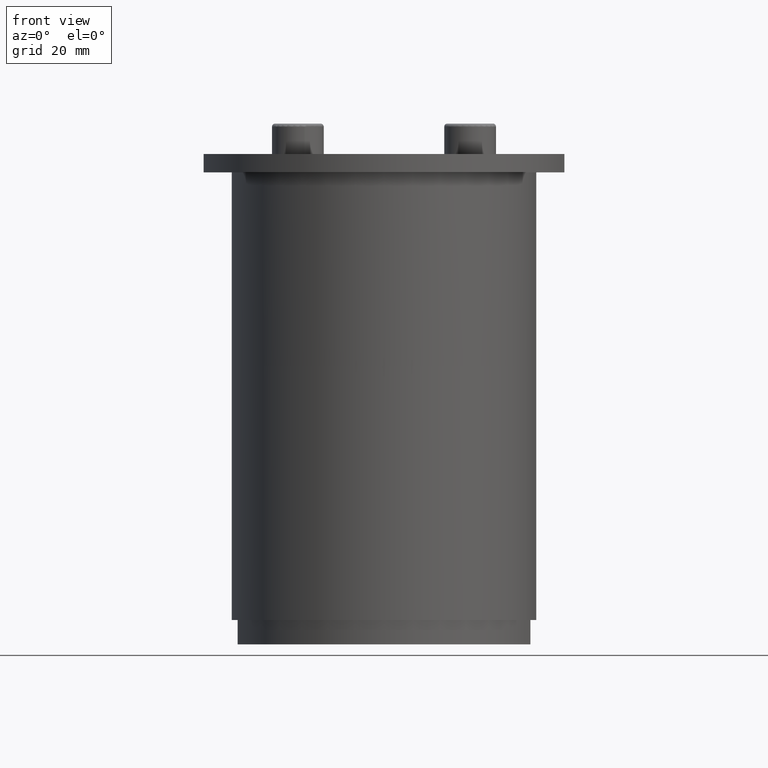
[diagram: clean part render]
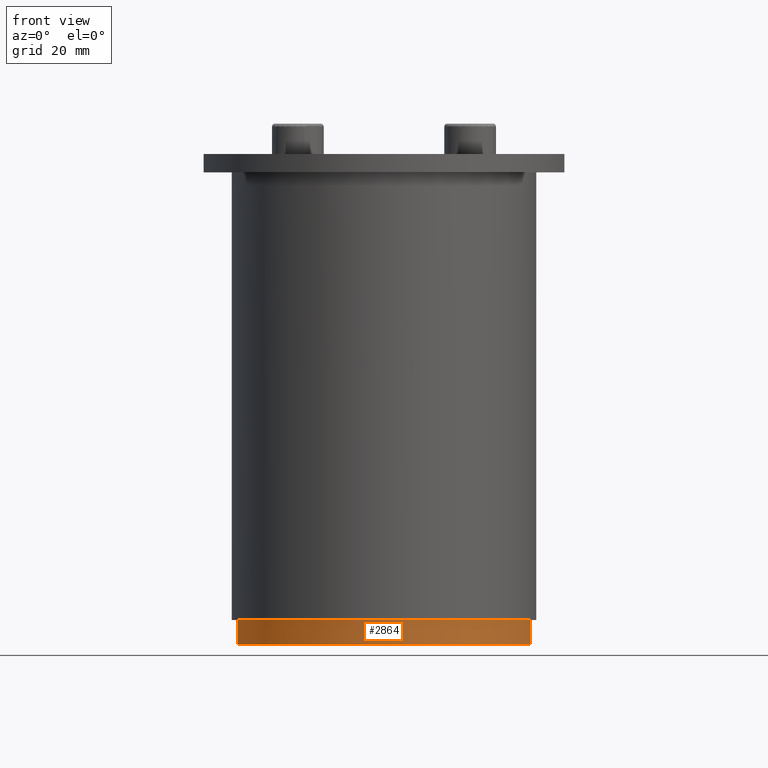
[diagram: same view with one face highlighted and labeled with its STEP entity id]
A machine part, front view. The second image highlights one B-rep face of the part: STEP entity #2864.
In plain terms, the highlighted cylindrical surface (partial cylindrical patch) has radius 24.5 mm, axis along (0, -0, 1).
Its self-contained STEP definition (entity closure, byte-faithful):
#155=LINE('',#4670,#345);
#159=LINE('',#4684,#349);
#345=VECTOR('',#3726,10.);
#349=VECTOR('',#3744,10.);
#463=CYLINDRICAL_SURFACE('',#3136,24.5);
#557=FACE_OUTER_BOUND('',#731,.T.);
#731=EDGE_LOOP('',(#2020,#2021,#2022,#2023));
#914=CIRCLE('',#3123,24.5);
#922=CIRCLE('',#3137,24.5);
#1155=VERTEX_POINT('',#4656);
#1156=VERTEX_POINT('',#4658);
#1160=VERTEX_POINT('',#4668);
#1163=VERTEX_POINT('',#4682);
#1462=EDGE_CURVE('',#1155,#1156,#914,.T.);
#1468=EDGE_CURVE('',#1160,#1155,#155,.T.);
#1475=EDGE_CURVE('',#1156,#1163,#159,.T.);
#1476=EDGE_CURVE('',#1163,#1160,#922,.T.);
#2020=ORIENTED_EDGE('',*,*,#1468,.F.);
#2021=ORIENTED_EDGE('',*,*,#1476,.F.);
#2022=ORIENTED_EDGE('',*,*,#1475,.F.);
#2023=ORIENTED_EDGE('',*,*,#1462,.F.);
#2864=ADVANCED_FACE('',(#557),#463,.T.);
#3123=AXIS2_PLACEMENT_3D('',#4659,#3713,#3714);
#3136=AXIS2_PLACEMENT_3D('',#4685,#3745,#3746);
#3137=AXIS2_PLACEMENT_3D('',#4686,#3747,#3748);
#3713=DIRECTION('center_axis',(-3.82040384530323E-49,4.67864534060084E-65,
-1.));
#3714=DIRECTION('ref_axis',(-0.998124021276529,-0.0612244897959182,3.81323684897437E-49));
#3726=DIRECTION('',(-3.82040384530323E-49,4.67864534060084E-65,-1.));
#3744=DIRECTION('',(3.82040384530323E-49,-4.67864534060084E-65,1.));
#3745=DIRECTION('center_axis',(3.82040384530323E-49,-4.67864534060084E-65,
1.));
#3746=DIRECTION('ref_axis',(-0.998124021276529,-0.0612244897959182,3.81323684897437E-49));
#3747=DIRECTION('center_axis',(0.,0.,1.));
#3748=DIRECTION('ref_axis',(-0.998124021276529,-0.0612244897959182,3.81323684897437E-49));
#4656=CARTESIAN_POINT('',(23.9573489776698,-5.1279069767442,-77.5));
#4658=CARTESIAN_POINT('',(-23.9573489776698,-5.12790697674419,-77.5));
#4659=CARTESIAN_POINT('Origin',(2.08166817117217E-15,-1.11022302462516E-14,
-77.5));
#4668=CARTESIAN_POINT('',(23.9573489776698,-5.1279069767442,-73.5));
#4670=CARTESIAN_POINT('',(23.9573489776698,-5.1279069767442,-75.5));
#4682=CARTESIAN_POINT('',(-23.9573489776698,-5.12790697674419,-73.5));
#4684=CARTESIAN_POINT('',(-23.9573489776698,-5.12790697674419,-75.5));
#4685=CARTESIAN_POINT('Origin',(2.08166817117217E-15,-1.11022302462516E-14,
-75.5));
#4686=CARTESIAN_POINT('Origin',(2.08166817117217E-15,-1.11022302462516E-14,
-73.5));